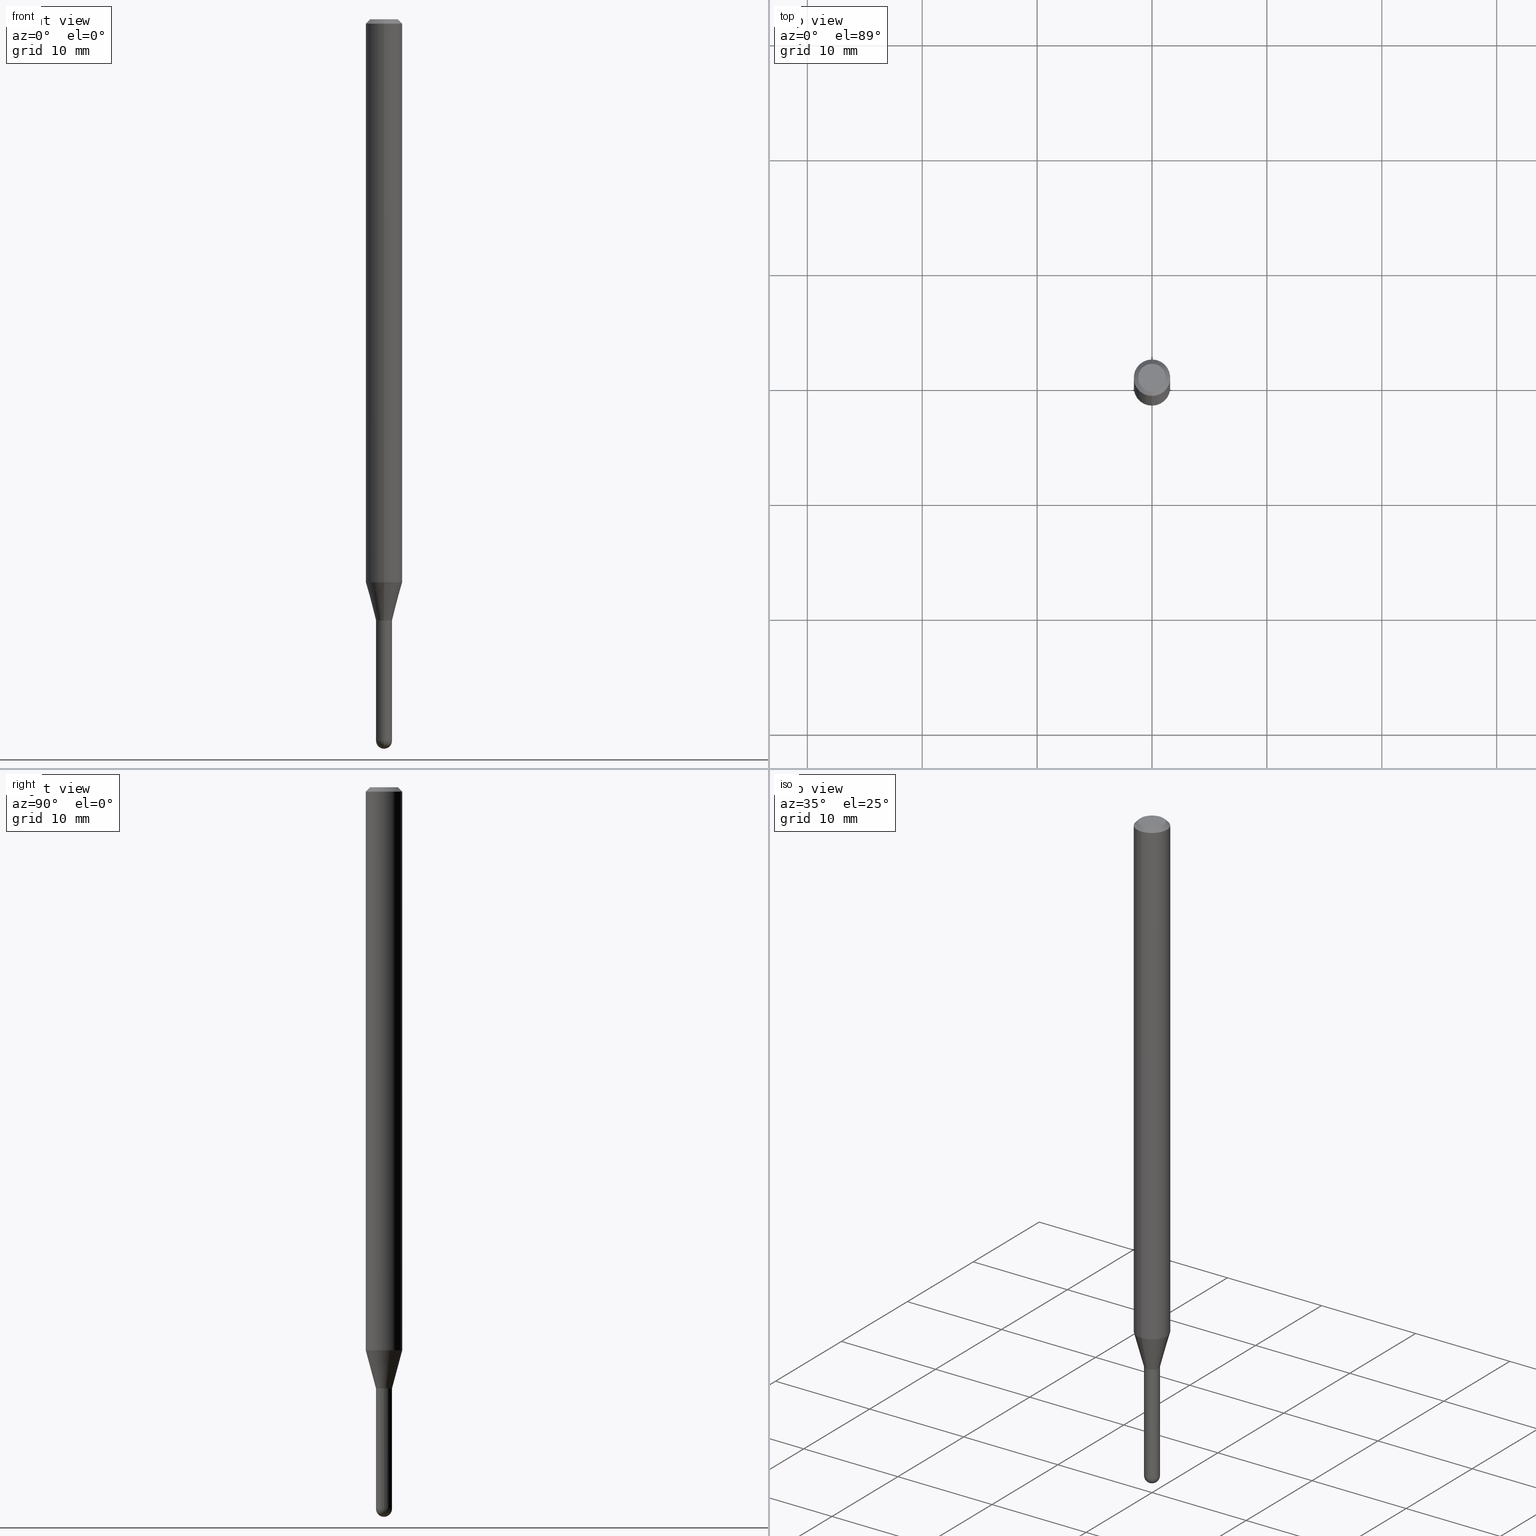
[diagram: canonical four-view strip — front | top / right | iso, engineering-drawing reading convention]
A machine part, canonical four-view strip (front | top / right | iso — engineering-drawing reading convention). The complete STEP part file that produces these views, byte-faithful:
ISO-10303-21;
HEADER;
FILE_DESCRIPTION (( 'STEP AP203' ),
    '1' );
FILE_NAME ('04493.STEP',
    '2024-03-08T20:06:22',
    ( '' ),
    ( '' ),
    'SwSTEP 2.0',
    'SolidWorks 2023',
    '' );
FILE_SCHEMA (( 'CONFIG_CONTROL_DESIGN' ));
ENDSEC;

DATA;
#1 = VERTEX_POINT ( 'NONE', #488 ) ;
#2 = AXIS2_PLACEMENT_3D ( 'NONE', #132, #12, #290 ) ;
#3 = ORGANIZATION ( 'UNSPECIFIED', 'UNSPECIFIED', '' ) ;
#4 = FACE_OUTER_BOUND ( 'NONE', #215, .T. ) ;
#5 = ADVANCED_FACE ( 'NONE', ( #98 ), #256, .F. ) ;
#6 = ORIENTED_EDGE ( 'NONE', *, *, #177, .T. ) ;
#7 = CARTESIAN_POINT ( 'NONE',  ( 4.364351673553919652E-16, 0.06249999999999995143, -0.01500000000000028394 ) ) ;
#8 = ORIENTED_EDGE ( 'NONE', *, *, #268, .F. ) ;
#9 = FACE_OUTER_BOUND ( 'NONE', #326, .T. ) ;
#10 = VERTEX_POINT ( 'NONE', #303 ) ;
#11 = CIRCLE ( 'NONE', #243, 0.02750000000000019790 ) ;
#12 = DIRECTION ( 'NONE',  ( -2.445457341332455997E-29, 3.491497757164723116E-15, 1.000000000000000000 ) ) ;
#13 = PRODUCT_DEFINITION_FORMATION_WITH_SPECIFIED_SOURCE ( 'ANY', '', #61, .NOT_KNOWN. ) ;
#14 = ORIENTED_EDGE ( 'NONE', *, *, #268, .T. ) ;
#15 = SPHERICAL_SURFACE ( 'NONE', #113, 0.02750000000000009381 ) ;
#16 = EDGE_CURVE ( 'NONE', #385, #1, #101, .T. ) ;
#17 = EDGE_LOOP ( 'NONE', ( #133, #444, #333, #289, #85 ) ) ;
#18 = DIRECTION ( 'NONE',  ( -4.851104656540964275E-15, -0.7071067811865500152, -0.7071067811865450192 ) ) ;
#19 = ORIENTED_EDGE ( 'NONE', *, *, #301, .T. ) ;
#20 = PLANE ( 'NONE',  #321 ) ;
#21 = CIRCLE ( 'NONE', #95, 0.02699999999999999969 ) ;
#22 = DIRECTION ( 'NONE',  ( -6.982962677686265922E-15, -1.000000000000000000, 0.000000000000000000 ) ) ;
#23 = DIRECTION ( 'NONE',  ( -2.445457341332455997E-29, 3.491497757164723116E-15, 1.000000000000000000 ) ) ;
#24 = CYLINDRICAL_SURFACE ( 'NONE', #416, 0.06250000000000000000 ) ;
#25 = DIRECTION ( 'NONE',  ( 1.000000000000000000, 0.000000000000000000, 0.000000000000000000 ) ) ;
#26 = DIRECTION ( 'NONE',  ( -6.982962677686265922E-15, -1.000000000000000000, 0.000000000000000000 ) ) ;
#27 = CARTESIAN_POINT ( 'NONE',  ( 0.000000000000000000, 0.000000000000000000, 0.000000000000000000 ) ) ;
#28 = VECTOR ( 'NONE', #188, 39.37007874015748143 ) ;
#29 = FACE_OUTER_BOUND ( 'NONE', #436, .T. ) ;
#30 = AXIS2_PLACEMENT_3D ( 'NONE', #414, #172, #489 ) ;
#31 = SECURITY_CLASSIFICATION_LEVEL ( 'unclassified' ) ;
#32 = EDGE_CURVE ( 'NONE', #388, #483, #451, .T. ) ;
#33 = CARTESIAN_POINT ( 'NONE',  ( 0.000000000000000000, 0.000000000000000000, 0.000000000000000000 ) ) ;
#34 = PERSON_AND_ORGANIZATION ( #440, #3 ) ;
#35 = EDGE_CURVE ( 'NONE', #317, #53, #490, .T. ) ;
#36 = CARTESIAN_POINT ( 'NONE',  ( -0.02750000000000000014, -7.717170331819249590E-15, -2.060000000000000053 ) ) ;
#37 = ORIENTED_EDGE ( 'NONE', *, *, #465, .T. ) ;
#38 = PERSON_AND_ORGANIZATION_ROLE ( 'design_supplier' ) ;
#39 = CONICAL_SURFACE ( 'NONE', #2, 0.02750000000000019790, 0.2617993877991579010 ) ;
#40 = ADVANCED_FACE ( 'NONE', ( #345 ), #196, .T. ) ;
#41 = AXIS2_PLACEMENT_3D ( 'NONE', #511, #463, #162 ) ;
#42 = EDGE_LOOP ( 'NONE', ( #60, #432, #178, #45 ) ) ;
#43 = ORIENTED_EDGE ( 'NONE', *, *, #487, .T. ) ;
#44 = SPHERICAL_SURFACE ( 'NONE', #507, 0.02750000000000009381 ) ;
#45 = ORIENTED_EDGE ( 'NONE', *, *, #78, .F. ) ;
#46 = APPLICATION_CONTEXT ( 'configuration controlled 3d designs of mechanical parts and assemblies' ) ;
#47 = CIRCLE ( 'NONE', #501, 0.06250000000000000000 ) ;
#48 = DIRECTION ( 'NONE',  ( -2.445457341332455997E-29, 3.491497757164723116E-15, 1.000000000000000000 ) ) ;
#49 = ORIENTED_EDGE ( 'NONE', *, *, #474, .T. ) ;
#50 = CARTESIAN_POINT ( 'NONE',  ( 0.000000000000000000, 0.000000000000000000, 0.000000000000000000 ) ) ;
#51 = ORIENTED_EDGE ( 'NONE', *, *, #78, .T. ) ;
#52 = FACE_OUTER_BOUND ( 'NONE', #335, .T. ) ;
#53 = VERTEX_POINT ( 'NONE', #258 ) ;
#54 = AXIS2_PLACEMENT_3D ( 'NONE', #498, #379, #372 ) ;
#55 = AXIS2_PLACEMENT_3D ( 'NONE', #124, #77, #394 ) ;
#56 = CARTESIAN_POINT ( 'NONE',  ( 3.668186011998700145E-31, -5.237246635747108241E-17, -0.01500000000000006710 ) ) ;
#57 = LOCAL_TIME ( 15, 6, 22.00000000000000000, #68 ) ;
#58 = ORIENTED_EDGE ( 'NONE', *, *, #449, .F. ) ;
#59 = FACE_OUTER_BOUND ( 'NONE', #468, .T. ) ;
#60 = ORIENTED_EDGE ( 'NONE', *, *, #455, .F. ) ;
#61 = PRODUCT ( '04493', '04493', '', ( #419 ) ) ;
#62 = CARTESIAN_POINT ( 'NONE',  ( -4.364351673553912750E-16, -0.06250000000000005551, -0.01499999999999984852 ) ) ;
#63 = ADVANCED_FACE ( 'NONE', ( #413 ), #24, .T. ) ;
#64 = CARTESIAN_POINT ( 'NONE',  ( 0.000000000000000000, 0.000000000000000000, 0.000000000000000000 ) ) ;
#65 = DIRECTION ( 'NONE',  ( -6.982962677686265133E-15, -1.000000000000000000, 0.000000000000000000 ) ) ;
#66 = VECTOR ( 'NONE', #411, 39.37007874015748143 ) ;
#67 = DIRECTION ( 'NONE',  ( -6.982962677686265922E-15, -1.000000000000000000, 3.491497757164723116E-15 ) ) ;
#68 = COORDINATED_UNIVERSAL_TIME_OFFSET ( 5, 0, .BEHIND. ) ;
#69 = DIRECTION ( 'NONE',  ( -2.445457341332456277E-29, 3.491497757164723116E-15, 1.000000000000000000 ) ) ;
#70 =( CONVERSION_BASED_UNIT ( 'INCH', #152 ) LENGTH_UNIT ( ) NAMED_UNIT ( #275 ) );
#71 = DIRECTION ( 'NONE',  ( -6.982962677686265922E-15, -1.000000000000000000, 3.483106191921935554E-15 ) ) ;
#72 = ADVANCED_FACE ( 'NONE', ( #267 ), #495, .F. ) ;
#73 = DIRECTION ( 'NONE',  ( 6.982962677686265922E-15, 1.000000000000000000, 0.000000000000000000 ) ) ;
#74 = DIRECTION ( 'NONE',  ( 1.000000000000000000, -6.982962677686279332E-15, 0.000000000000000000 ) ) ;
#75 = CONICAL_SURFACE ( 'NONE', #491, 0.02699999999999999969, 0.7853981633974739252 ) ;
#76 = PERSON_AND_ORGANIZATION ( #440, #3 ) ;
#77 = DIRECTION ( 'NONE',  ( -2.445457341332455997E-29, 3.491497757164723116E-15, 1.000000000000000000 ) ) ;
#78 = EDGE_CURVE ( 'NONE', #360, #385, #456, .T. ) ;
#79 = ORIENTED_EDGE ( 'NONE', *, *, #412, .F. ) ;
#80 = CONICAL_SURFACE ( 'NONE', #397, 0.02750000000000019790, 0.2617993877991579010 ) ;
#81 = APPLICATION_CONTEXT ( 'configuration controlled 3d designs of mechanical parts and assemblies' ) ;
#82 = VERTEX_POINT ( 'NONE', #226 ) ;
#83 = ORIENTED_EDGE ( 'NONE', *, *, #338, .F. ) ;
#84 = CARTESIAN_POINT ( 'NONE',  ( 4.718212136549045981E-29, -6.736419733910545190E-15, -1.929378221735094545 ) ) ;
#85 = ORIENTED_EDGE ( 'NONE', *, *, #205, .T. ) ;
#86 = CARTESIAN_POINT ( 'NONE',  ( 1.920314736364227082E-16, 0.02749999999999280798, -2.060000000000000053 ) ) ;
#87 = VERTEX_POINT ( 'NONE', #230 ) ;
#88 = AXIS2_PLACEMENT_3D ( 'NONE', #415, #462, #223 ) ;
#89 = PLANE ( 'NONE',  #105 ) ;
#90 = ORIENTED_EDGE ( 'NONE', *, *, #200, .T. ) ;
#91 = DIRECTION ( 'NONE',  ( 6.982962677686265922E-15, 1.000000000000000000, -3.483106191921935554E-15 ) ) ;
#92 = EDGE_CURVE ( 'NONE', #1, #292, #407, .T. ) ;
#93 = ORIENTED_EDGE ( 'NONE', *, *, #110, .F. ) ;
#94 = ORIENTED_EDGE ( 'NONE', *, *, #32, .F. ) ;
#95 = AXIS2_PLACEMENT_3D ( 'NONE', #369, #182, #65 ) ;
#96 = LINE ( 'NONE', #263, #136 ) ;
#97 = APPROVAL_PERSON_ORGANIZATION ( #459, #193, #231 ) ;
#98 = FACE_OUTER_BOUND ( 'NONE', #206, .T. ) ;
#99 = CARTESIAN_POINT ( 'NONE',  ( 0.02750000000000000014, -8.104601057789650990E-15, -2.472499999999999254 ) ) ;
#100 = ADVANCED_BREP_SHAPE_REPRESENTATION ( '04493', ( #473, #134, #471 ), #213 ) ;
#101 = LINE ( 'NONE', #181, #28 ) ;
#102 = FACE_OUTER_BOUND ( 'NONE', #279, .T. ) ;
#103 = CARTESIAN_POINT ( 'NONE',  ( 4.440892098500625669E-16, 0.06250000000000000000, -2.182186098227951947E-16 ) ) ;
#104 = DIRECTION ( 'NONE',  ( -2.445468806185136597E-29, 3.491481338843145583E-15, 1.000000000000000000 ) ) ;
#105 = AXIS2_PLACEMENT_3D ( 'NONE', #86, #401, #403 ) ;
#106 = APPROVAL_PERSON_ORGANIZATION ( #376, #350, #310 ) ;
#107 = CARTESIAN_POINT ( 'NONE',  ( 5.037642123144859404E-29, -7.192485379759330660E-15, -2.060000000000000053 ) ) ;
#108 = APPROVAL_STATUS ( 'not_yet_approved' ) ;
#109 = DIRECTION ( 'NONE',  ( 1.000000000000000000, -6.982962677686266711E-15, 4.876176775795935793E-29 ) ) ;
#110 = EDGE_CURVE ( 'NONE', #317, #409, #382, .T. ) ;
#111 = DIRECTION ( 'NONE',  ( -2.445457341332455997E-29, 3.491497757164723116E-15, 1.000000000000000000 ) ) ;
#112 = DIRECTION ( 'NONE',  ( -2.445457341332455997E-29, 3.491497757164723116E-15, 1.000000000000000000 ) ) ;
#113 = AXIS2_PLACEMENT_3D ( 'NONE', #486, #135, #73 ) ;
#114 = EDGE_LOOP ( 'NONE', ( #217, #294, #358, #93 ) ) ;
#115 = APPROVAL_STATUS ( 'not_yet_approved' ) ;
#116 = EDGE_CURVE ( 'NONE', #208, #409, #481, .T. ) ;
#117 =( NAMED_UNIT ( * ) PLANE_ANGLE_UNIT ( ) SI_UNIT ( $, .RADIAN. ) );
#118 = ORIENTED_EDGE ( 'NONE', *, *, #200, .F. ) ;
#119 = AXIS2_PLACEMENT_3D ( 'NONE', #477, #264, #67 ) ;
#120 = ORIENTED_EDGE ( 'NONE', *, *, #478, .F. ) ;
#121 = DIRECTION ( 'NONE',  ( -6.982962677686266711E-15, -1.000000000000000000, 3.491497757164723116E-15 ) ) ;
#122 = ORIENTED_EDGE ( 'NONE', *, *, #496, .T. ) ;
#123 = ADVANCED_FACE ( 'NONE', ( #148 ), #80, .T. ) ;
#124 = CARTESIAN_POINT ( 'NONE',  ( 1.601761210829372786E-45, -2.286911973723899369E-31, -6.549945418212126928E-17 ) ) ;
#125 = ORIENTED_EDGE ( 'NONE', *, *, #145, .F. ) ;
#126 = DIRECTION ( 'NONE',  ( 1.000000000000000000, -6.982962677686279332E-15, 0.000000000000000000 ) ) ;
#127 = ORIENTED_EDGE ( 'NONE', *, *, #238, .F. ) ;
#128 = AXIS2_PLACEMENT_3D ( 'NONE', #300, #418, #228 ) ;
#129 = AXIS2_PLACEMENT_3D ( 'NONE', #441, #48, #121 ) ;
#130 = CARTESIAN_POINT ( 'NONE',  ( 6.044069915997506284E-29, -8.636055388987333140E-15, -2.472500000000000142 ) ) ;
#131 = ORIENTED_EDGE ( 'NONE', *, *, #16, .T. ) ;
#132 = CARTESIAN_POINT ( 'NONE',  ( 5.037642123144859404E-29, -7.192485379759330660E-15, -2.060000000000000053 ) ) ;
#133 = ORIENTED_EDGE ( 'NONE', *, *, #478, .T. ) ;
#134 = MANIFOLD_SOLID_BREP ( 'Body-Move/Copy2[2]', #389 ) ;
#135 = DIRECTION ( 'NONE',  ( -1.000000000000000000, 6.982962677686265922E-15, -4.883557194083112901E-29 ) ) ;
#136 = VECTOR ( 'NONE', #216, 39.37007874015748143 ) ;
#137 = DIRECTION ( 'NONE',  ( -2.445457341332455997E-29, 3.491497757164723116E-15, 1.000000000000000000 ) ) ;
#138 = CARTESIAN_POINT ( 'NONE',  ( 0.000000000000000000, 0.000000000000000000, 0.000000000000000000 ) ) ;
#139 = ADVANCED_FACE ( 'NONE', ( #377 ), #235, .T. ) ;
#140 = DIRECTION ( 'NONE',  ( -6.982962677686265922E-15, -1.000000000000000000, 4.370956789862821150E-15 ) ) ;
#141 = DIRECTION ( 'NONE',  ( -2.445457341332455997E-29, 3.491497757164723116E-15, 1.000000000000000000 ) ) ;
#142 = CARTESIAN_POINT ( 'NONE',  ( -1.920314736363233118E-16, -0.02750000000000739006, -2.060000000000000053 ) ) ;
#143 = DIRECTION ( 'NONE',  ( -4.937700262164674260E-15, -0.7071067811865632269, 0.7071067811865319186 ) ) ;
#144 = CIRCLE ( 'NONE', #221, 0.02750000000000019790 ) ;
#145 = EDGE_CURVE ( 'NONE', #483, #404, #470, .T. ) ;
#146 = DIRECTION ( 'NONE',  ( -6.982962677686265922E-15, -1.000000000000000000, 0.000000000000000000 ) ) ;
#147 = PERSON_AND_ORGANIZATION ( #440, #3 ) ;
#148 = FACE_OUTER_BOUND ( 'NONE', #400, .T. ) ;
#149 = PERSON_AND_ORGANIZATION_ROLE ( 'classification_officer' ) ;
#150 = DIRECTION ( 'NONE',  ( -6.982962677686265922E-15, -1.000000000000000000, 0.000000000000000000 ) ) ;
#151 = EDGE_CURVE ( 'NONE', #391, #82, #144, .T. ) ;
#152 = LENGTH_MEASURE_WITH_UNIT ( LENGTH_MEASURE( 0.02539999999999999897 ), #344 );
#153 = CIRCLE ( 'NONE', #55, 0.04749999999999999362 ) ;
#154 = LOCAL_TIME ( 15, 6, 22.00000000000000000, #425 ) ;
#155 = ORIENTED_EDGE ( 'NONE', *, *, #449, .T. ) ;
#156 = CALENDAR_DATE ( 2024, 8, 3 ) ;
#157 = ORIENTED_EDGE ( 'NONE', *, *, #151, .F. ) ;
#158 = DIRECTION ( 'NONE',  ( -2.445468806185136597E-29, 3.491481338843145583E-15, 1.000000000000000000 ) ) ;
#159 = ADVANCED_FACE ( 'NONE', ( #493 ), #184, .T. ) ;
#160 = CIRCLE ( 'NONE', #129, 0.04749999999999999362 ) ;
#161 = VERTEX_POINT ( 'NONE', #266 ) ;
#162 = DIRECTION ( 'NONE',  ( 1.000000000000000000, -6.982962677686279332E-15, 0.000000000000000000 ) ) ;
#163 = ADVANCED_FACE ( 'NONE', ( #29 ), #337, .T. ) ;
#164 = ORIENTED_EDGE ( 'NONE', *, *, #253, .T. ) ;
#165 = DATE_AND_TIME ( #199, #508 ) ;
#166 = CARTESIAN_POINT ( 'NONE',  ( 6.046421623292748621E-29, -8.632687610289675147E-15, -2.472499999999999254 ) ) ;
#167 = ORIENTED_EDGE ( 'NONE', *, *, #338, .T. ) ;
#168 = EDGE_CURVE ( 'NONE', #391, #409, #271, .T. ) ;
#169 = CARTESIAN_POINT ( 'NONE',  ( -0.02750000000000000014, 1.953992523340275521E-16, -1.352707149820099181E-30 ) ) ;
#170 = ORIENTED_EDGE ( 'NONE', *, *, #301, .F. ) ;
#171 = CIRCLE ( 'NONE', #229, 0.06250000000000000000 ) ;
#172 = DIRECTION ( 'NONE',  ( -1.000000000000000000, 7.105427357601001070E-15, -4.926315508542082329E-29 ) ) ;
#173 = ORIENTED_EDGE ( 'NONE', *, *, #474, .F. ) ;
#174 = DIRECTION ( 'NONE',  ( 1.000000000000000000, -6.982962677686279332E-15, 0.000000000000000000 ) ) ;
#175 = EDGE_LOOP ( 'NONE', ( #251, #362, #51, #131, #430 ) ) ;
#176 = DIRECTION ( 'NONE',  ( 6.982962677686265922E-15, 1.000000000000000000, 0.000000000000000000 ) ) ;
#177 = EDGE_CURVE ( 'NONE', #87, #10, #160, .T. ) ;
#178 = ORIENTED_EDGE ( 'NONE', *, *, #205, .F. ) ;
#179 = VECTOR ( 'NONE', #218, 39.37007874015748143 ) ;
#180 = CARTESIAN_POINT ( 'NONE',  ( 5.037642123144859964E-29, -7.192485379759330660E-15, -2.060000000000000497 ) ) ;
#181 = CARTESIAN_POINT ( 'NONE',  ( 0.02750000000000000014, -1.920314736363723444E-16, 1.340948613343882413E-30 ) ) ;
#182 = DIRECTION ( 'NONE',  ( -2.445457341332455997E-29, 3.491497757164723116E-15, 1.000000000000000000 ) ) ;
#183 = CARTESIAN_POINT ( 'NONE',  ( 3.668186011998700145E-31, -5.237246635747108241E-17, -0.01500000000000006710 ) ) ;
#184 = CYLINDRICAL_SURFACE ( 'NONE', #423, 0.02750000000000000014 ) ;
#185 = APPROVAL_ROLE ( '' ) ;
#186 = CC_DESIGN_PERSON_AND_ORGANIZATION_ASSIGNMENT ( #272, #502, ( #13 ) ) ;
#187 = CIRCLE ( 'NONE', #390, 0.02750000000000000014 ) ;
#188 = DIRECTION ( 'NONE',  ( -2.445468806185136877E-29, 3.491481338843145188E-15, 1.000000000000000000 ) ) ;
#189 = PERSON_AND_ORGANIZATION_ROLE ( 'design_owner' ) ;
#190 = DIRECTION ( 'NONE',  ( -2.445457341332455997E-29, 3.491497757164723116E-15, 1.000000000000000000 ) ) ;
#191 = CALENDAR_DATE ( 2024, 8, 3 ) ;
#192 = DIRECTION ( 'NONE',  ( -1.807323732225381810E-15, -0.2588190451025255689, 0.9659258262890669799 ) ) ;
#193 = APPROVAL ( #115, 'UNSPECIFIED' ) ;
#194 = ORIENTED_EDGE ( 'NONE', *, *, #92, .T. ) ;
#195 = COORDINATED_UNIVERSAL_TIME_OFFSET ( 5, 0, .BEHIND. ) ;
#196 = CONICAL_SURFACE ( 'NONE', #211, 0.06250000000000000000, 0.7853981633974483900 ) ;
#197 = AXIS2_PLACEMENT_3D ( 'NONE', #138, #112, #434 ) ;
#198 = SECURITY_CLASSIFICATION ( '', '', #31 ) ;
#199 = CALENDAR_DATE ( 2024, 8, 3 ) ;
#200 = EDGE_CURVE ( 'NONE', #82, #391, #399, .T. ) ;
#201 = EDGE_LOOP ( 'NONE', ( #402, #239, #395, #368 ) ) ;
#202 = DIRECTION ( 'NONE',  ( -2.445468806185136597E-29, 3.491481338843145583E-15, 1.000000000000000000 ) ) ;
#203 = CIRCLE ( 'NONE', #458, 0.02750000000000000014 ) ;
#204 = CARTESIAN_POINT ( 'NONE',  ( 5.037642123144859404E-29, -7.192485379759330660E-15, -2.060000000000000053 ) ) ;
#205 = EDGE_CURVE ( 'NONE', #385, #480, #438, .T. ) ;
#206 = EDGE_LOOP ( 'NONE', ( #448, #157, #439, #164 ) ) ;
#207 = LINE ( 'NONE', #248, #307 ) ;
#208 = VERTEX_POINT ( 'NONE', #323 ) ;
#209 = CARTESIAN_POINT ( 'NONE',  ( 6.112496161815219763E-29, -8.730387236456691573E-15, -2.500000000000000000 ) ) ;
#210 = ORIENTED_EDGE ( 'NONE', *, *, #393, .T. ) ;
#211 = AXIS2_PLACEMENT_3D ( 'NONE', #183, #341, #343 ) ;
#212 = VECTOR ( 'NONE', #242, 39.37007874015748143 ) ;
#213 =( GEOMETRIC_REPRESENTATION_CONTEXT ( 3 ) GLOBAL_UNCERTAINTY_ASSIGNED_CONTEXT ( ( #236 ) ) GLOBAL_UNIT_ASSIGNED_CONTEXT ( ( #70, #117, #421 ) ) REPRESENTATION_CONTEXT ( 'NONE', 'WORKASPACE' ) );
#214 = CARTESIAN_POINT ( 'NONE',  ( 1.953992523340289326E-16, 0.02750000000000019790, -9.601618832203057249E-17 ) ) ;
#215 = EDGE_LOOP ( 'NONE', ( #194, #122 ) ) ;
#216 = DIRECTION ( 'NONE',  ( 1.839019923739652775E-15, 0.2588190451025323413, 0.9659258262890650926 ) ) ;
#217 = ORIENTED_EDGE ( 'NONE', *, *, #35, .T. ) ;
#218 = DIRECTION ( 'NONE',  ( 5.024295867788190974E-15, 0.7071067811865681119, 0.7071067811865270336 ) ) ;
#219 = EDGE_CURVE ( 'NONE', #161, #292, #281, .T. ) ;
#220 = DIRECTION ( 'NONE',  ( -2.445457341332455997E-29, 3.491497757164723116E-15, 1.000000000000000000 ) ) ;
#221 = AXIS2_PLACEMENT_3D ( 'NONE', #107, #111, #26 ) ;
#222 = LINE ( 'NONE', #406, #270 ) ;
#223 = DIRECTION ( 'NONE',  ( -6.982962677686265133E-15, -1.000000000000000000, 0.000000000000000000 ) ) ;
#224 = DESIGN_CONTEXT ( 'detailed design', #46, 'design' ) ;
#225 = DATE_TIME_ROLE ( 'classification_date' ) ;
#226 = CARTESIAN_POINT ( 'NONE',  ( 3.197442310920946221E-16, 0.02749999999999300573, -2.060000000000000053 ) ) ;
#227 = APPROVAL_STATUS ( 'not_yet_approved' ) ;
#228 = DIRECTION ( 'NONE',  ( -6.982962677686265133E-15, -1.000000000000000000, 0.000000000000000000 ) ) ;
#229 = AXIS2_PLACEMENT_3D ( 'NONE', #497, #137, #140 ) ;
#230 = CARTESIAN_POINT ( 'NONE',  ( -3.773273898774340269E-16, -0.04749999999999999362, 1.003466892832030526E-16 ) ) ;
#231 = APPROVAL_ROLE ( '' ) ;
#232 = EDGE_CURVE ( 'NONE', #161, #360, #187, .T. ) ;
#233 = CYLINDRICAL_SURFACE ( 'NONE', #346, 0.02750000000000000014 ) ;
#234 = DATE_TIME_ROLE ( 'creation_date' ) ;
#235 = CONICAL_SURFACE ( 'NONE', #88, 0.02699999999999999969, 0.7853981633974739252 ) ;
#236 = UNCERTAINTY_MEASURE_WITH_UNIT (LENGTH_MEASURE( 1.000000000000000082E-05 ), #70, 'distance_accuracy_value', 'NONE');
#237 = EDGE_LOOP ( 'NONE', ( #273, #155, #510, #8 ) ) ;
#238 = EDGE_CURVE ( 'NONE', #241, #388, #47, .T. ) ;
#239 = ORIENTED_EDGE ( 'NONE', *, *, #32, .T. ) ;
#240 = CARTESIAN_POINT ( 'NONE',  ( 3.668186011998700145E-31, -5.237246635747108241E-17, -0.01500000000000006710 ) ) ;
#241 = VERTEX_POINT ( 'NONE', #320 ) ;
#242 = DIRECTION ( 'NONE',  ( 4.937700262164548042E-15, 0.7071067811865451302, -0.7071067811865499042 ) ) ;
#243 = AXIS2_PLACEMENT_3D ( 'NONE', #398, #472, #150 ) ;
#244 = EDGE_LOOP ( 'NONE', ( #322, #173 ) ) ;
#245 = LOCAL_TIME ( 15, 6, 22.00000000000000000, #380 ) ;
#246 = DIRECTION ( 'NONE',  ( -6.982962677686265922E-15, -1.000000000000000000, 4.370956789862821150E-15 ) ) ;
#247 = EDGE_LOOP ( 'NONE', ( #118, #210, #274, #366 ) ) ;
#248 = CARTESIAN_POINT ( 'NONE',  ( -1.920314736363233118E-16, -0.02750000000000739006, -2.060000000000000053 ) ) ;
#249 = ORIENTED_EDGE ( 'NONE', *, *, #465, .F. ) ;
#250 = CARTESIAN_POINT ( 'NONE',  ( -4.287811248607203282E-16, -0.06250000000000005551, -0.01499999999999984852 ) ) ;
#251 = ORIENTED_EDGE ( 'NONE', *, *, #219, .F. ) ;
#252 = CIRCLE ( 'NONE', #30, 0.02750000000000009381 ) ;
#253 = EDGE_CURVE ( 'NONE', #409, #208, #11, .T. ) ;
#254 = CC_DESIGN_APPROVAL ( #350, ( #198 ) ) ;
#255 = DIRECTION ( 'NONE',  ( -6.982962677686265922E-15, -1.000000000000000000, 3.491497757164723116E-15 ) ) ;
#256 = CYLINDRICAL_SURFACE ( 'NONE', #119, 0.02750000000000019790 ) ;
#257 = CARTESIAN_POINT ( 'NONE',  ( 4.440892098501095534E-16, 0.06249999999999324846, -1.929378221735094767 ) ) ;
#258 = CARTESIAN_POINT ( 'NONE',  ( 1.936228954946783541E-16, 0.02699999999999280753, -2.060000000000000497 ) ) ;
#259 = LINE ( 'NONE', #214, #66 ) ;
#260 = ADVANCED_FACE ( 'NONE', ( #9 ), #359, .F. ) ;
#261 = DIRECTION ( 'NONE',  ( -2.445468806185136597E-29, 3.491481338843145583E-15, 1.000000000000000000 ) ) ;
#262 = AXIS2_PLACEMENT_3D ( 'NONE', #56, #293, #364 ) ;
#263 = CARTESIAN_POINT ( 'NONE',  ( 1.953992523340792964E-16, 0.02749999999999300573, -2.060000000000000053 ) ) ;
#264 = DIRECTION ( 'NONE',  ( -2.445457341332455997E-29, 3.491497757164723116E-15, 1.000000000000000000 ) ) ;
#265 = DATE_AND_TIME ( #386, #245 ) ;
#266 = CARTESIAN_POINT ( 'NONE',  ( -0.02750000000000000014, -7.717170331819249590E-15, -2.472499999999999254 ) ) ;
#267 = FACE_OUTER_BOUND ( 'NONE', #247, .T. ) ;
#268 = EDGE_CURVE ( 'NONE', #10, #483, #284, .T. ) ;
#269 = AXIS2_PLACEMENT_3D ( 'NONE', #64, #220, #422 ) ;
#270 = VECTOR ( 'NONE', #342, 39.37007874015748143 ) ;
#271 = LINE ( 'NONE', #325, #431 ) ;
#272 = PERSON_AND_ORGANIZATION ( #440, #3 ) ;
#273 = ORIENTED_EDGE ( 'NONE', *, *, #177, .F. ) ;
#274 = ORIENTED_EDGE ( 'NONE', *, *, #116, .T. ) ;
#275 = DIMENSIONAL_EXPONENTS ( 1.000000000000000000, 0.000000000000000000, 0.000000000000000000, 0.000000000000000000, 0.000000000000000000, 0.000000000000000000, 0.000000000000000000 ) ;
#276 = AXIS2_PLACEMENT_3D ( 'NONE', #348, #261, #74 ) ;
#277 = AXIS2_PLACEMENT_3D ( 'NONE', #240, #479, #91 ) ;
#278 = CC_DESIGN_PERSON_AND_ORGANIZATION_ASSIGNMENT ( #378, #189, ( #61 ) ) ;
#279 = EDGE_LOOP ( 'NONE', ( #79, #49, #509, #442 ) ) ;
#280 = APPROVAL_DATE_TIME ( #165, #350 ) ;
#281 = LINE ( 'NONE', #169, #356 ) ;
#282 = FACE_OUTER_BOUND ( 'NONE', #175, .T. ) ;
#283 = ORIENTED_EDGE ( 'NONE', *, *, #363, .T. ) ;
#284 = LINE ( 'NONE', #7, #212 ) ;
#285 = VECTOR ( 'NONE', #143, 39.37007874015748143 ) ;
#286 = ORIENTED_EDGE ( 'NONE', *, *, #455, .T. ) ;
#287 = CC_DESIGN_APPROVAL ( #499, ( #318 ) ) ;
#288 = DIRECTION ( 'NONE',  ( 1.000000000000000000, -6.982962677686266711E-15, 4.876176775795935793E-29 ) ) ;
#289 = ORIENTED_EDGE ( 'NONE', *, *, #16, .F. ) ;
#290 = DIRECTION ( 'NONE',  ( -6.982962677686265922E-15, -1.000000000000000000, 0.000000000000000000 ) ) ;
#291 = ADVANCED_FACE ( 'NONE', ( #427 ), #446, .T. ) ;
#292 = VERTEX_POINT ( 'NONE', #36 ) ;
#293 = DIRECTION ( 'NONE',  ( -2.445457341332455997E-29, 3.491497757164723116E-15, 1.000000000000000000 ) ) ;
#294 = ORIENTED_EDGE ( 'NONE', *, *, #412, .T. ) ;
#295 = AXIS2_PLACEMENT_3D ( 'NONE', #311, #500, #22 ) ;
#296 = PRODUCT_RELATED_PRODUCT_CATEGORY ( 'detail', '', ( #61 ) ) ;
#297 = VECTOR ( 'NONE', #18, 39.37007874015748143 ) ;
#298 = CC_DESIGN_APPROVAL ( #193, ( #13 ) ) ;
#299 = CARTESIAN_POINT ( 'NONE',  ( -1.953992523339674261E-16, -0.02750000000000868070, -2.472499999999999254 ) ) ;
#300 = CARTESIAN_POINT ( 'NONE',  ( 5.037642123144859964E-29, -7.192485379759330660E-15, -2.060000000000000497 ) ) ;
#301 = EDGE_CURVE ( 'NONE', #10, #87, #153, .T. ) ;
#302 = CARTESIAN_POINT ( 'NONE',  ( 5.037642123144859964E-29, -7.192485379759330660E-15, -2.060000000000000497 ) ) ;
#303 = CARTESIAN_POINT ( 'NONE',  ( 3.840629472727447874E-16, 0.04749999999999999362, -2.313455976474456035E-16 ) ) ;
#304 = CARTESIAN_POINT ( 'NONE',  ( -1.920314736363239774E-16, -0.02750000000000748374, -2.059500000000000330 ) ) ;
#305 = CARTESIAN_POINT ( 'NONE',  ( 5.037642123144859404E-29, -7.192485379759330660E-15, -2.060000000000000053 ) ) ;
#306 = CLOSED_SHELL ( 'NONE', ( #159, #506, #324, #312, #316 ) ) ;
#307 = VECTOR ( 'NONE', #192, 39.37007874015748854 ) ;
#308 = DATE_AND_TIME ( #156, #154 ) ;
#309 = CARTESIAN_POINT ( 'NONE',  ( 0.000000000000000000, 0.000000000000000000, 0.000000000000000000 ) ) ;
#310 = APPROVAL_ROLE ( '' ) ;
#311 = CARTESIAN_POINT ( 'NONE',  ( 5.036419394474193876E-29, -7.190739630880748842E-15, -2.059500000000000330 ) ) ;
#312 = ADVANCED_FACE ( 'NONE', ( #328 ), #44, .T. ) ;
#313 = CARTESIAN_POINT ( 'NONE',  ( 3.316907271900976096E-16, 0.04749999999999999362, -1.985958705563849688E-16 ) ) ;
#314 = DIRECTION ( 'NONE',  ( 0.000000000000000000, 0.000000000000000000, 1.000000000000000000 ) ) ;
#315 = PERSON_AND_ORGANIZATION_ROLE ( 'creator' ) ;
#316 = ADVANCED_FACE ( 'NONE', ( #282 ), #233, .T. ) ;
#317 = VERTEX_POINT ( 'NONE', #505 ) ;
#318 = PRODUCT_DEFINITION ( 'UNKNOWN', '', #13, #224 ) ;
#319 = ORIENTED_EDGE ( 'NONE', *, *, #426, .F. ) ;
#320 = CARTESIAN_POINT ( 'NONE',  ( -4.364351673553446829E-16, -0.06250000000000677236, -1.929378221735094323 ) ) ;
#321 = AXIS2_PLACEMENT_3D ( 'NONE', #180, #340, #255 ) ;
#322 = ORIENTED_EDGE ( 'NONE', *, *, #35, .F. ) ;
#323 = CARTESIAN_POINT ( 'NONE',  ( 1.953992523340786308E-16, 0.02749999999999291206, -2.059500000000000330 ) ) ;
#324 = ADVANCED_FACE ( 'NONE', ( #4 ), #89, .F. ) ;
#325 = CARTESIAN_POINT ( 'NONE',  ( -1.920314736363737003E-16, -0.02750000000000019790, 9.601618832203057249E-17 ) ) ;
#326 = EDGE_LOOP ( 'NONE', ( #19, #6 ) ) ;
#327 = COORDINATED_UNIVERSAL_TIME_OFFSET ( 5, 0, .BEHIND. ) ;
#328 = FACE_OUTER_BOUND ( 'NONE', #42, .T. ) ;
#329 = VECTOR ( 'NONE', #69, 39.37007874015748143 ) ;
#330 = CIRCLE ( 'NONE', #339, 0.02750000000000000014 ) ;
#331 = ORIENTED_EDGE ( 'NONE', *, *, #363, .F. ) ;
#332 = DIRECTION ( 'NONE',  ( -2.445468806185136597E-29, 3.491481338843145583E-15, 1.000000000000000000 ) ) ;
#333 = ORIENTED_EDGE ( 'NONE', *, *, #92, .F. ) ;
#334 = CARTESIAN_POINT ( 'NONE',  ( 6.046421623292748621E-29, -8.632687610289675147E-15, -2.472499999999999254 ) ) ;
#335 = EDGE_LOOP ( 'NONE', ( #319, #286, #475, #120 ) ) ;
#336 = CARTESIAN_POINT ( 'NONE',  ( 6.044069915997506284E-29, -8.636055388987333140E-15, -2.472500000000000142 ) ) ;
#337 = CYLINDRICAL_SURFACE ( 'NONE', #197, 0.06250000000000000000 ) ;
#338 = EDGE_CURVE ( 'NONE', #391, #241, #207, .T. ) ;
#339 = AXIS2_PLACEMENT_3D ( 'NONE', #454, #104, #484 ) ;
#340 = DIRECTION ( 'NONE',  ( -2.445457341332455717E-29, 3.491497757164723116E-15, 1.000000000000000000 ) ) ;
#341 = DIRECTION ( 'NONE',  ( 2.445457341332455997E-29, -3.491497757164723116E-15, -1.000000000000000000 ) ) ;
#342 = DIRECTION ( 'NONE',  ( -2.445457341332456277E-29, 3.491497757164723116E-15, 1.000000000000000000 ) ) ;
#343 = DIRECTION ( 'NONE',  ( 6.982962677686265922E-15, 1.000000000000000000, -3.483106191921935554E-15 ) ) ;
#344 =( LENGTH_UNIT ( ) NAMED_UNIT ( * ) SI_UNIT ( $, .METRE. ) );
#345 = FACE_OUTER_BOUND ( 'NONE', #370, .T. ) ;
#346 = AXIS2_PLACEMENT_3D ( 'NONE', #50, #202, #288 ) ;
#347 = APPROVAL_DATE_TIME ( #466, #193 ) ;
#348 = CARTESIAN_POINT ( 'NONE',  ( 6.046421623292748621E-29, -8.632687610289675147E-15, -2.472499999999999254 ) ) ;
#349 = CALENDAR_DATE ( 2024, 8, 3 ) ;
#350 = APPROVAL ( #108, 'UNSPECIFIED' ) ;
#351 = DIRECTION ( 'NONE',  ( 6.982962677686265922E-15, 1.000000000000000000, 0.000000000000000000 ) ) ;
#352 = DATE_AND_TIME ( #349, #424 ) ;
#353 = AXIS2_PLACEMENT_3D ( 'NONE', #336, #374, #176 ) ;
#354 = DIRECTION ( 'NONE',  ( -2.445457341332456277E-29, 3.491497757164723116E-15, 1.000000000000000000 ) ) ;
#355 = DIRECTION ( 'NONE',  ( -2.445457341332455997E-29, 3.491497757164723116E-15, 1.000000000000000000 ) ) ;
#356 = VECTOR ( 'NONE', #476, 39.37007874015748143 ) ;
#357 = EDGE_CURVE ( 'NONE', #404, #483, #482, .T. ) ;
#358 = ORIENTED_EDGE ( 'NONE', *, *, #253, .F. ) ;
#359 = PLANE ( 'NONE',  #365 ) ;
#360 = VERTEX_POINT ( 'NONE', #299 ) ;
#361 = DIRECTION ( 'NONE',  ( 2.445457341332455717E-29, -3.491497757164723116E-15, -1.000000000000000000 ) ) ;
#362 = ORIENTED_EDGE ( 'NONE', *, *, #232, .T. ) ;
#363 = EDGE_CURVE ( 'NONE', #388, #241, #171, .T. ) ;
#364 = DIRECTION ( 'NONE',  ( -6.982962677686265922E-15, -1.000000000000000000, 3.483106191921935554E-15 ) ) ;
#365 = AXIS2_PLACEMENT_3D ( 'NONE', #313, #361, #435 ) ;
#366 = ORIENTED_EDGE ( 'NONE', *, *, #168, .F. ) ;
#367 = LINE ( 'NONE', #445, #179 ) ;
#368 = ORIENTED_EDGE ( 'NONE', *, *, #487, .F. ) ;
#369 = CARTESIAN_POINT ( 'NONE',  ( 5.037642123144859964E-29, -7.192485379759330660E-15, -2.060000000000000497 ) ) ;
#370 = EDGE_LOOP ( 'NONE', ( #58, #170, #14, #485 ) ) ;
#371 = FACE_OUTER_BOUND ( 'NONE', #244, .T. ) ;
#372 = DIRECTION ( 'NONE',  ( 1.000000000000000000, -6.982962677686279332E-15, 0.000000000000000000 ) ) ;
#373 = AXIS2_PLACEMENT_3D ( 'NONE', #204, #190, #383 ) ;
#374 = DIRECTION ( 'NONE',  ( 1.000000000000000000, -6.982962677686265922E-15, 4.883557194083112340E-29 ) ) ;
#375 = CARTESIAN_POINT ( 'NONE',  ( 3.668186011998700145E-31, -5.237246635747108241E-17, -0.01500000000000006710 ) ) ;
#376 = PERSON_AND_ORGANIZATION ( #440, #3 ) ;
#377 = FACE_OUTER_BOUND ( 'NONE', #114, .T. ) ;
#378 = PERSON_AND_ORGANIZATION ( #440, #3 ) ;
#379 = DIRECTION ( 'NONE',  ( -2.445468806185136597E-29, 3.491481338843145583E-15, 1.000000000000000000 ) ) ;
#380 = COORDINATED_UNIVERSAL_TIME_OFFSET ( 5, 0, .BEHIND. ) ;
#381 = CC_DESIGN_PERSON_AND_ORGANIZATION_ASSIGNMENT ( #417, #149, ( #198 ) ) ;
#382 = LINE ( 'NONE', #503, #285 ) ;
#383 = DIRECTION ( 'NONE',  ( -6.982962677686265922E-15, -1.000000000000000000, 0.000000000000000000 ) ) ;
#384 = ADVANCED_FACE ( 'NONE', ( #102 ), #75, .T. ) ;
#385 = VERTEX_POINT ( 'NONE', #99 ) ;
#386 = CALENDAR_DATE ( 2024, 8, 3 ) ;
#387 = CC_DESIGN_DATE_AND_TIME_ASSIGNMENT ( #352, #225, ( #198 ) ) ;
#388 = VERTEX_POINT ( 'NONE', #257 ) ;
#389 = CLOSED_SHELL ( 'NONE', ( #72, #139, #291, #63, #433, #123, #163, #40, #260, #469, #384, #5 ) ) ;
#390 = AXIS2_PLACEMENT_3D ( 'NONE', #166, #158, #126 ) ;
#391 = VERTEX_POINT ( 'NONE', #142 ) ;
#392 = SHAPE_DEFINITION_REPRESENTATION ( #396, #100 ) ;
#393 = EDGE_CURVE ( 'NONE', #82, #208, #259, .T. ) ;
#394 = DIRECTION ( 'NONE',  ( -6.982962677686266711E-15, -1.000000000000000000, 3.491497757164723116E-15 ) ) ;
#395 = ORIENTED_EDGE ( 'NONE', *, *, #357, .F. ) ;
#396 = PRODUCT_DEFINITION_SHAPE ( 'NONE', 'NONE',  #318 ) ;
#397 = AXIS2_PLACEMENT_3D ( 'NONE', #305, #141, #146 ) ;
#398 = CARTESIAN_POINT ( 'NONE',  ( 5.036419394474193876E-29, -7.190739630880748842E-15, -2.059500000000000330 ) ) ;
#399 = CIRCLE ( 'NONE', #373, 0.02750000000000019790 ) ;
#400 = EDGE_LOOP ( 'NONE', ( #249, #90, #167, #331 ) ) ;
#401 = DIRECTION ( 'NONE',  ( 2.438088387897960049E-29, -3.491481338843145188E-15, -1.000000000000000000 ) ) ;
#402 = ORIENTED_EDGE ( 'NONE', *, *, #238, .T. ) ;
#403 = DIRECTION ( 'NONE',  ( -1.000000000000000000, 6.982962677686265922E-15, -4.876176775795935793E-29 ) ) ;
#404 = VERTEX_POINT ( 'NONE', #62 ) ;
#405 = CC_DESIGN_PERSON_AND_ORGANIZATION_ASSIGNMENT ( #34, #315, ( #318 ) ) ;
#406 = CARTESIAN_POINT ( 'NONE',  ( -4.364351673553916201E-16, -0.06250000000000000000, 2.182186098227951947E-16 ) ) ;
#407 = CIRCLE ( 'NONE', #54, 0.02750000000000000014 ) ;
#408 = CIRCLE ( 'NONE', #353, 0.02750000000000009381 ) ;
#409 = VERTEX_POINT ( 'NONE', #304 ) ;
#410 = ORIENTED_EDGE ( 'NONE', *, *, #151, .T. ) ;
#411 = DIRECTION ( 'NONE',  ( -2.445457341332456277E-29, 3.491497757164723116E-15, 1.000000000000000000 ) ) ;
#412 = EDGE_CURVE ( 'NONE', #53, #208, #367, .T. ) ;
#413 = FACE_OUTER_BOUND ( 'NONE', #201, .T. ) ;
#414 = CARTESIAN_POINT ( 'NONE',  ( 6.044069915997506284E-29, -8.636055388987333140E-15, -2.472500000000000142 ) ) ;
#415 = CARTESIAN_POINT ( 'NONE',  ( 5.037642123144859964E-29, -7.192485379759330660E-15, -2.060000000000000497 ) ) ;
#416 = AXIS2_PLACEMENT_3D ( 'NONE', #33, #453, #420 ) ;
#417 = PERSON_AND_ORGANIZATION ( #440, #3 ) ;
#418 = DIRECTION ( 'NONE',  ( -2.445457341332455997E-29, 3.491497757164723116E-15, 1.000000000000000000 ) ) ;
#419 = MECHANICAL_CONTEXT ( 'NONE', #81, 'mechanical' ) ;
#420 = DIRECTION ( 'NONE',  ( -6.982962677686265922E-15, -1.000000000000000000, 3.491497757164723116E-15 ) ) ;
#421 =( NAMED_UNIT ( * ) SI_UNIT ( $, .STERADIAN. ) SOLID_ANGLE_UNIT ( ) );
#422 = DIRECTION ( 'NONE',  ( -6.982962677686265922E-15, -1.000000000000000000, 3.491497757164723116E-15 ) ) ;
#423 = AXIS2_PLACEMENT_3D ( 'NONE', #309, #460, #109 ) ;
#424 = LOCAL_TIME ( 15, 6, 22.00000000000000000, #195 ) ;
#425 = COORDINATED_UNIVERSAL_TIME_OFFSET ( 5, 0, .BEHIND. ) ;
#426 = EDGE_CURVE ( 'NONE', #429, #480, #408, .T. ) ;
#427 = FACE_OUTER_BOUND ( 'NONE', #237, .T. ) ;
#428 = CC_DESIGN_PERSON_AND_ORGANIZATION_ASSIGNMENT ( #147, #38, ( #13 ) ) ;
#429 = VERTEX_POINT ( 'NONE', #209 ) ;
#430 = ORIENTED_EDGE ( 'NONE', *, *, #496, .F. ) ;
#431 = VECTOR ( 'NONE', #354, 39.37007874015748143 ) ;
#432 = ORIENTED_EDGE ( 'NONE', *, *, #426, .T. ) ;
#433 = ADVANCED_FACE ( 'NONE', ( #59 ), #39, .T. ) ;
#434 = DIRECTION ( 'NONE',  ( -6.982962677686265922E-15, -1.000000000000000000, 3.491497757164723116E-15 ) ) ;
#435 = DIRECTION ( 'NONE',  ( 6.982962677686265922E-15, 1.000000000000000000, -3.491497757164723116E-15 ) ) ;
#436 = EDGE_LOOP ( 'NONE', ( #94, #283, #43, #125 ) ) ;
#437 = DIRECTION ( 'NONE',  ( -1.000000000000000000, 6.982962677686265922E-15, -4.883557194083112901E-29 ) ) ;
#438 = CIRCLE ( 'NONE', #41, 0.02750000000000000014 ) ;
#439 = ORIENTED_EDGE ( 'NONE', *, *, #168, .T. ) ;
#440 = PERSON ( 'UNSPECIFIED', 'UNSPECIFIED', 'UNSPECIFIED', ('UNSPECIFIED'), ('UNSPECIFIED'), ('UNSPECIFIED') ) ;
#441 = CARTESIAN_POINT ( 'NONE',  ( 1.601761210829372786E-45, -2.286911973723899369E-31, -6.549945418212126928E-17 ) ) ;
#442 = ORIENTED_EDGE ( 'NONE', *, *, #116, .F. ) ;
#443 = CARTESIAN_POINT ( 'NONE',  ( 1.920314736364331113E-16, 0.02749999999999141673, -2.472499999999999254 ) ) ;
#444 = ORIENTED_EDGE ( 'NONE', *, *, #219, .T. ) ;
#445 = CARTESIAN_POINT ( 'NONE',  ( 1.918465386552773872E-16, 0.02699999999999280753, -2.060000000000000497 ) ) ;
#446 = CONICAL_SURFACE ( 'NONE', #277, 0.06250000000000000000, 0.7853981633974483900 ) ;
#447 = APPROVAL_PERSON_ORGANIZATION ( #76, #499, #185 ) ;
#448 = ORIENTED_EDGE ( 'NONE', *, *, #393, .F. ) ;
#449 = EDGE_CURVE ( 'NONE', #87, #404, #452, .T. ) ;
#450 = DIRECTION ( 'NONE',  ( -6.982962677686265133E-15, -1.000000000000000000, 0.000000000000000000 ) ) ;
#451 = LINE ( 'NONE', #103, #329 ) ;
#452 = LINE ( 'NONE', #250, #297 ) ;
#453 = DIRECTION ( 'NONE',  ( -2.445457341332455997E-29, 3.491497757164723116E-15, 1.000000000000000000 ) ) ;
#454 = CARTESIAN_POINT ( 'NONE',  ( 5.037665740741381905E-29, -7.192451558016880271E-15, -2.060000000000000053 ) ) ;
#455 = EDGE_CURVE ( 'NONE', #429, #360, #252, .T. ) ;
#456 = CIRCLE ( 'NONE', #276, 0.02750000000000000014 ) ;
#457 = DIRECTION ( 'NONE',  ( -2.445457341332455997E-29, 3.491497757164723116E-15, 1.000000000000000000 ) ) ;
#458 = AXIS2_PLACEMENT_3D ( 'NONE', #334, #332, #174 ) ;
#459 = PERSON_AND_ORGANIZATION ( #440, #3 ) ;
#460 = DIRECTION ( 'NONE',  ( -2.445468806185136597E-29, 3.491481338843145583E-15, 1.000000000000000000 ) ) ;
#461 = APPLICATION_PROTOCOL_DEFINITION ( 'international standard', 'config_control_design', 1994, #46 ) ;
#462 = DIRECTION ( 'NONE',  ( -2.445457341332455997E-29, 3.491497757164723116E-15, 1.000000000000000000 ) ) ;
#463 = DIRECTION ( 'NONE',  ( -2.445468806185136597E-29, 3.491481338843145583E-15, 1.000000000000000000 ) ) ;
#464 = AXIS2_PLACEMENT_3D ( 'NONE', #375, #457, #71 ) ;
#465 = EDGE_CURVE ( 'NONE', #82, #388, #96, .T. ) ;
#466 = DATE_AND_TIME ( #191, #57 ) ;
#467 = APPLICATION_PROTOCOL_DEFINITION ( 'international standard', 'config_control_design', 1994, #81 ) ;
#468 = EDGE_LOOP ( 'NONE', ( #410, #37, #127, #83 ) ) ;
#469 = ADVANCED_FACE ( 'NONE', ( #371 ), #20, .F. ) ;
#470 = CIRCLE ( 'NONE', #464, 0.06250000000000000000 ) ;
#471 = AXIS2_PLACEMENT_3D ( 'NONE', #27, #314, #25 ) ;
#472 = DIRECTION ( 'NONE',  ( -2.445457341332455997E-29, 3.491497757164723116E-15, 1.000000000000000000 ) ) ;
#473 = MANIFOLD_SOLID_BREP ( 'Body-Move/Copy2[1]', #306 ) ;
#474 = EDGE_CURVE ( 'NONE', #53, #317, #21, .T. ) ;
#475 = ORIENTED_EDGE ( 'NONE', *, *, #232, .F. ) ;
#476 = DIRECTION ( 'NONE',  ( -2.445468806185136877E-29, 3.491481338843145188E-15, 1.000000000000000000 ) ) ;
#477 = CARTESIAN_POINT ( 'NONE',  ( 0.000000000000000000, 0.000000000000000000, 0.000000000000000000 ) ) ;
#478 = EDGE_CURVE ( 'NONE', #480, #161, #203, .T. ) ;
#479 = DIRECTION ( 'NONE',  ( 2.445457341332455997E-29, -3.491497757164723116E-15, -1.000000000000000000 ) ) ;
#480 = VERTEX_POINT ( 'NONE', #443 ) ;
#481 = CIRCLE ( 'NONE', #295, 0.02750000000000019790 ) ;
#482 = CIRCLE ( 'NONE', #262, 0.06250000000000000000 ) ;
#483 = VERTEX_POINT ( 'NONE', #494 ) ;
#484 = DIRECTION ( 'NONE',  ( 1.000000000000000000, -6.982962677686279332E-15, 0.000000000000000000 ) ) ;
#485 = ORIENTED_EDGE ( 'NONE', *, *, #145, .T. ) ;
#486 = CARTESIAN_POINT ( 'NONE',  ( 6.044069915997506284E-29, -8.636055388987333140E-15, -2.472500000000000142 ) ) ;
#487 = EDGE_CURVE ( 'NONE', #241, #404, #222, .T. ) ;
#488 = CARTESIAN_POINT ( 'NONE',  ( 0.02750000000000000014, -7.384483031653253552E-15, -2.060000000000000053 ) ) ;
#489 = DIRECTION ( 'NONE',  ( -7.105427357601001070E-15, -1.000000000000000000, 0.000000000000000000 ) ) ;
#490 = CIRCLE ( 'NONE', #128, 0.02699999999999999969 ) ;
#491 = AXIS2_PLACEMENT_3D ( 'NONE', #302, #23, #450 ) ;
#492 = CC_DESIGN_SECURITY_CLASSIFICATION ( #198, ( #13 ) ) ;
#493 = FACE_OUTER_BOUND ( 'NONE', #17, .T. ) ;
#494 = CARTESIAN_POINT ( 'NONE',  ( 4.440892098501101450E-16, 0.06249999999999995143, -0.01500000000000028394 ) ) ;
#495 = CYLINDRICAL_SURFACE ( 'NONE', #269, 0.02750000000000019790 ) ;
#496 = EDGE_CURVE ( 'NONE', #292, #1, #330, .T. ) ;
#497 = CARTESIAN_POINT ( 'NONE',  ( 4.718212136549045981E-29, -6.736419733910545190E-15, -1.929378221735094545 ) ) ;
#498 = CARTESIAN_POINT ( 'NONE',  ( 5.037665740741381905E-29, -7.192451558016880271E-15, -2.060000000000000053 ) ) ;
#499 = APPROVAL ( #227, 'UNSPECIFIED' ) ;
#500 = DIRECTION ( 'NONE',  ( -2.445457341332455997E-29, 3.491497757164723116E-15, 1.000000000000000000 ) ) ;
#501 = AXIS2_PLACEMENT_3D ( 'NONE', #84, #355, #246 ) ;
#502 = PERSON_AND_ORGANIZATION_ROLE ( 'creator' ) ;
#503 = CARTESIAN_POINT ( 'NONE',  ( -1.885399922974788009E-16, -0.02700000000000719186, -2.060000000000000497 ) ) ;
#504 = APPROVAL_DATE_TIME ( #308, #499 ) ;
#505 = CARTESIAN_POINT ( 'NONE',  ( -1.885399922974788009E-16, -0.02700000000000719186, -2.060000000000000497 ) ) ;
#506 = ADVANCED_FACE ( 'NONE', ( #52 ), #15, .T. ) ;
#507 = AXIS2_PLACEMENT_3D ( 'NONE', #130, #437, #351 ) ;
#508 = LOCAL_TIME ( 15, 6, 22.00000000000000000, #327 ) ;
#509 = ORIENTED_EDGE ( 'NONE', *, *, #110, .T. ) ;
#510 = ORIENTED_EDGE ( 'NONE', *, *, #357, .T. ) ;
#511 = CARTESIAN_POINT ( 'NONE',  ( 6.046421623292748621E-29, -8.632687610289675147E-15, -2.472499999999999254 ) ) ;
#512 = CC_DESIGN_DATE_AND_TIME_ASSIGNMENT ( #265, #234, ( #318 ) ) ;
ENDSEC;
END-ISO-10303-21;
